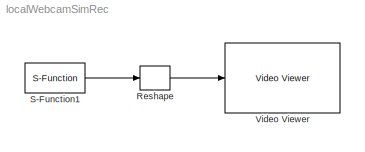
MODEL localWebcamSimRec
KIND model
BLOCK [Reshape] Reshape
  OutputDimensionality = Customize
  OutputDimensions = [60 80 3]
  Ports = [1, 1]
  SID = 14
BLOCK [S-Function] S-Function1
  EnableBusSupport = off
  FunctionName = fromIp
  Parameters = '6667' 0
  Ports = [0, 1]
  SID = 11
BLOCK [Reference] Video Viewer  REF=vipsnks/Video Viewer
  AxisZoom = on
  DialogControllerArgs = DataTag1
  FigPos = [669 575 404 388]
  OpenAtMdlStart = on
  Ports = [1]
  SID = 5
  SourceBlock = vipsnks/Video Viewer
  SourceType = Video Viewer
  UserData = DataTag0
  UserDataPersistent = on
  colormapValue = gray(256)
  imagePorts = One multidimensional signal
  inputType = Obsolete7b
  maxInputVal = 255
  minInputVal = 0
  specRange = off
  trueSizedOnce = off
  useColorMap = off
LINE Reshape:1 -> Video Viewer:1
LINE S-Function1:1 -> Reshape:1
